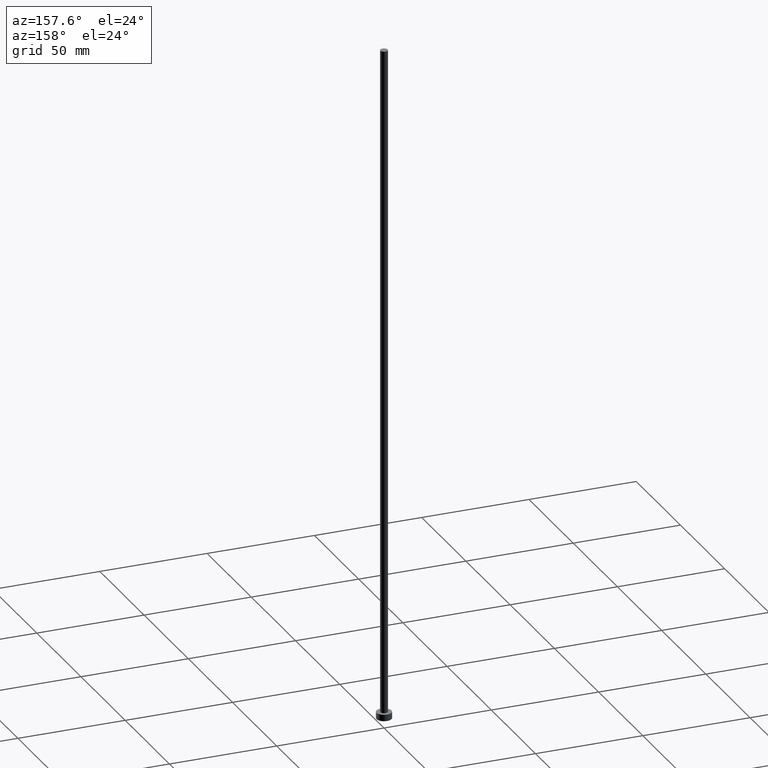
[diagram: clean part render]
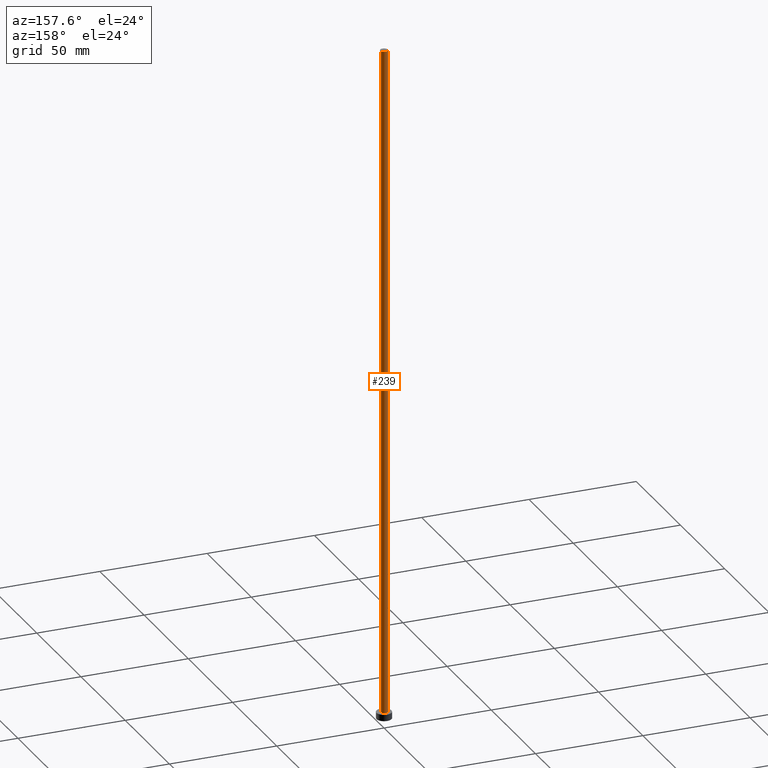
[diagram: same view with one face highlighted and labeled with its STEP entity id]
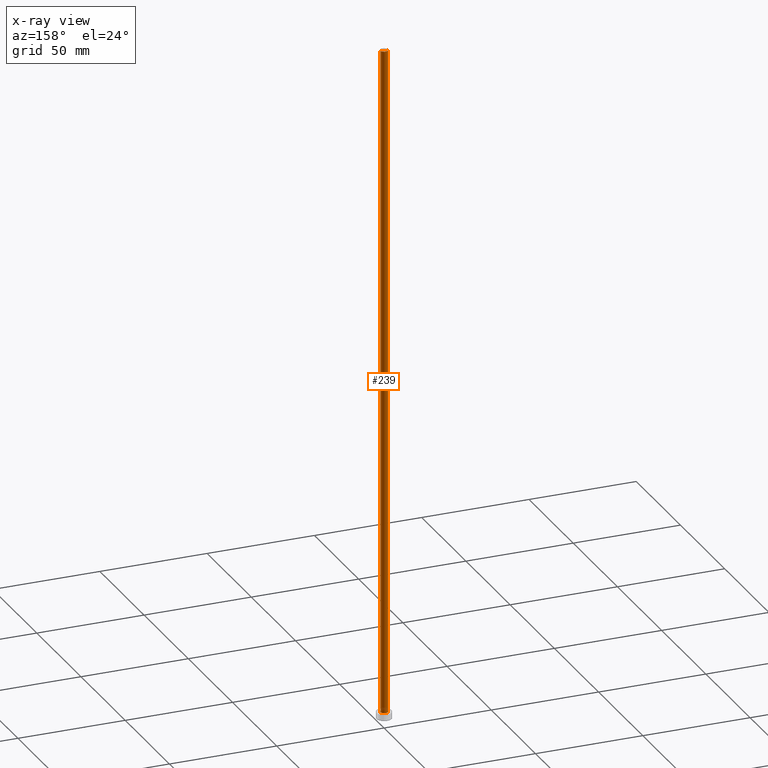
[diagram: x-ray of the same camera — body ghosted, the highlighted face saturated]
A machine part, auxiliary view. The second image highlights one B-rep face of the part: STEP entity #239.
The next image is the same camera in x-ray: the body ghosted, the highlighted face saturated — about 0% of this face is hidden behind the body in this view.
In plain terms, the highlighted cylindrical surface (edge-blend (fillet) strip) has radius 1.75 mm, axis along (-0, -0, -1).
Its self-contained STEP definition (entity closure, byte-faithful):
#1 = ORIENTED_EDGE ( 'NONE', *, *, #112, .F. ) ;
#3 = AXIS2_PLACEMENT_3D ( 'NONE', #16, #223, #99 ) ;
#10 = DIRECTION ( 'NONE',  ( 0.000000000000000000, 0.000000000000000000, 1.000000000000000000 ) ) ;
#16 = CARTESIAN_POINT ( 'NONE',  ( 0.000000000000000000, 0.000000000000000000, 315.0000000000000000 ) ) ;
#19 = CARTESIAN_POINT ( 'NONE',  ( -1.750000000000000000, 0.000000000000000000, 315.0000000000000000 ) ) ;
#20 = CARTESIAN_POINT ( 'NONE',  ( -1.750000000000000000, 0.000000000000000000, 3.000000000000000000 ) ) ;
#23 = ORIENTED_EDGE ( 'NONE', *, *, #221, .T. ) ;
#36 = VERTEX_POINT ( 'NONE', #20 ) ;
#52 = FACE_OUTER_BOUND ( 'NONE', #228, .T. ) ;
#63 = VECTOR ( 'NONE', #200, 1000.000000000000000 ) ;
#74 = DIRECTION ( 'NONE',  ( 1.000000000000000000, 0.000000000000000000, 0.000000000000000000 ) ) ;
#82 = EDGE_CURVE ( 'NONE', #207, #141, #137, .T. ) ;
#89 = DIRECTION ( 'NONE',  ( -0.000000000000000000, -0.000000000000000000, -1.000000000000000000 ) ) ;
#99 = DIRECTION ( 'NONE',  ( 1.000000000000000000, 0.000000000000000000, 0.000000000000000000 ) ) ;
#101 = LINE ( 'NONE', #219, #63 ) ;
#103 = CYLINDRICAL_SURFACE ( 'NONE', #183, 1.750000000000000000 ) ;
#104 = CIRCLE ( 'NONE', #138, 1.750000000000000000 ) ;
#106 = EDGE_CURVE ( 'NONE', #238, #36, #101, .T. ) ;
#110 = ORIENTED_EDGE ( 'NONE', *, *, #82, .T. ) ;
#112 = EDGE_CURVE ( 'NONE', #207, #238, #253, .T. ) ;
#137 = LINE ( 'NONE', #254, #230 ) ;
#138 = AXIS2_PLACEMENT_3D ( 'NONE', #146, #10, #74 ) ;
#141 = VERTEX_POINT ( 'NONE', #166 ) ;
#145 = CARTESIAN_POINT ( 'NONE',  ( 1.750000000000000000, 2.143131898507868297E-16, 315.0000000000000000 ) ) ;
#146 = CARTESIAN_POINT ( 'NONE',  ( 0.000000000000000000, 0.000000000000000000, 3.000000000000000000 ) ) ;
#155 = ORIENTED_EDGE ( 'NONE', *, *, #106, .F. ) ;
#166 = CARTESIAN_POINT ( 'NONE',  ( 1.750000000000000000, 2.143131898507868297E-16, 3.000000000000000000 ) ) ;
#174 = DIRECTION ( 'NONE',  ( -0.000000000000000000, -0.000000000000000000, -1.000000000000000000 ) ) ;
#183 = AXIS2_PLACEMENT_3D ( 'NONE', #184, #89, #208 ) ;
#184 = CARTESIAN_POINT ( 'NONE',  ( 0.000000000000000000, 0.000000000000000000, 315.0000000000000000 ) ) ;
#200 = DIRECTION ( 'NONE',  ( -0.000000000000000000, -0.000000000000000000, -1.000000000000000000 ) ) ;
#207 = VERTEX_POINT ( 'NONE', #145 ) ;
#208 = DIRECTION ( 'NONE',  ( -1.000000000000000000, 0.000000000000000000, 0.000000000000000000 ) ) ;
#219 = CARTESIAN_POINT ( 'NONE',  ( -1.750000000000000000, 0.000000000000000000, 315.0000000000000000 ) ) ;
#221 = EDGE_CURVE ( 'NONE', #141, #36, #104, .T. ) ;
#223 = DIRECTION ( 'NONE',  ( 0.000000000000000000, 0.000000000000000000, 1.000000000000000000 ) ) ;
#228 = EDGE_LOOP ( 'NONE', ( #1, #110, #23, #155 ) ) ;
#230 = VECTOR ( 'NONE', #174, 1000.000000000000000 ) ;
#238 = VERTEX_POINT ( 'NONE', #19 ) ;
#239 = ADVANCED_FACE ( 'NONE', ( #52 ), #103, .T. ) ;
#253 = CIRCLE ( 'NONE', #3, 1.750000000000000000 ) ;
#254 = CARTESIAN_POINT ( 'NONE',  ( 1.750000000000000000, 2.143131898507868297E-16, 315.0000000000000000 ) ) ;